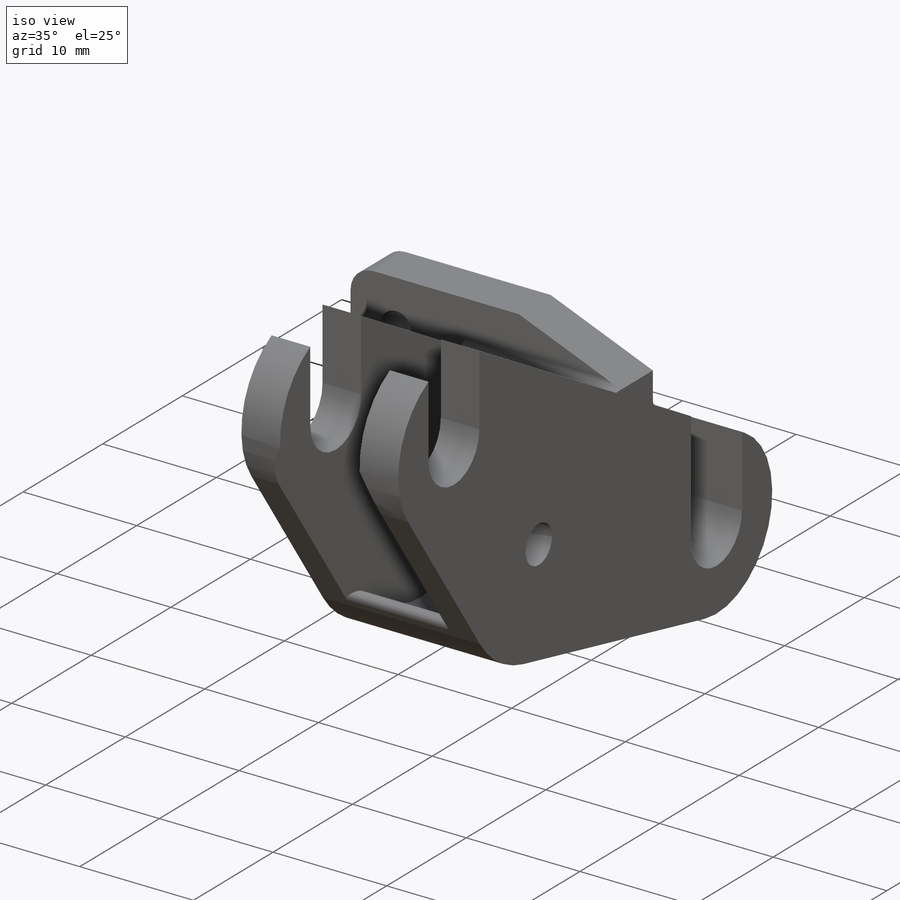
[diagram: iso view]
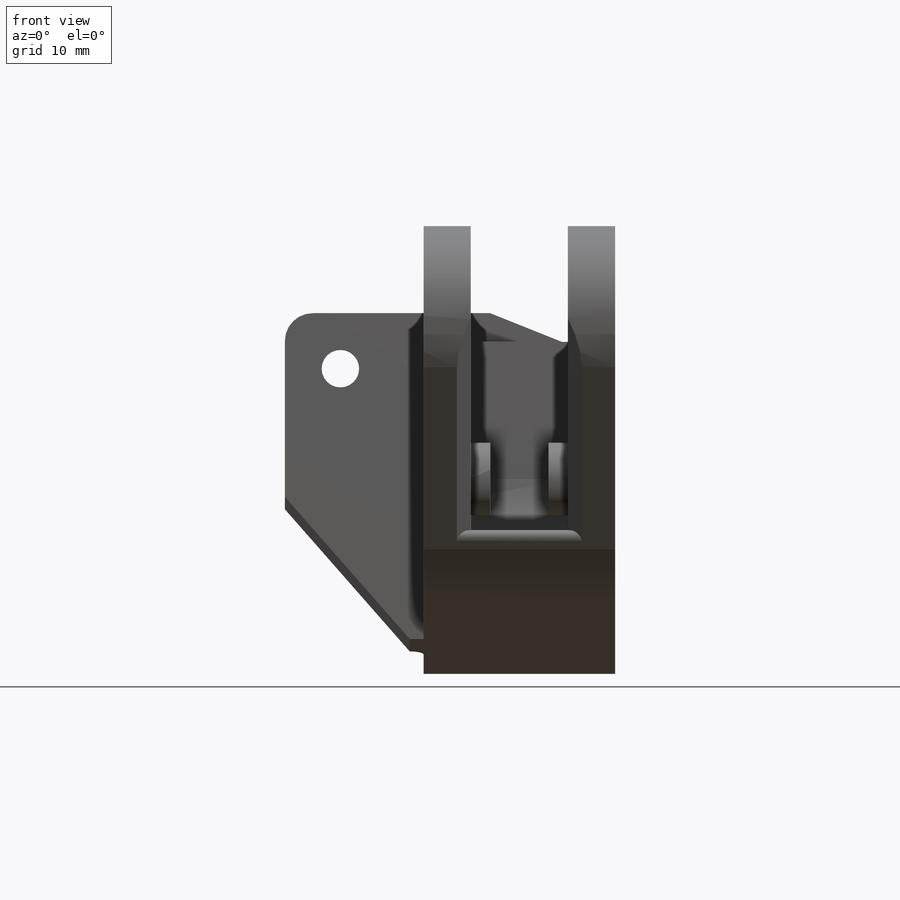
[diagram: front view]
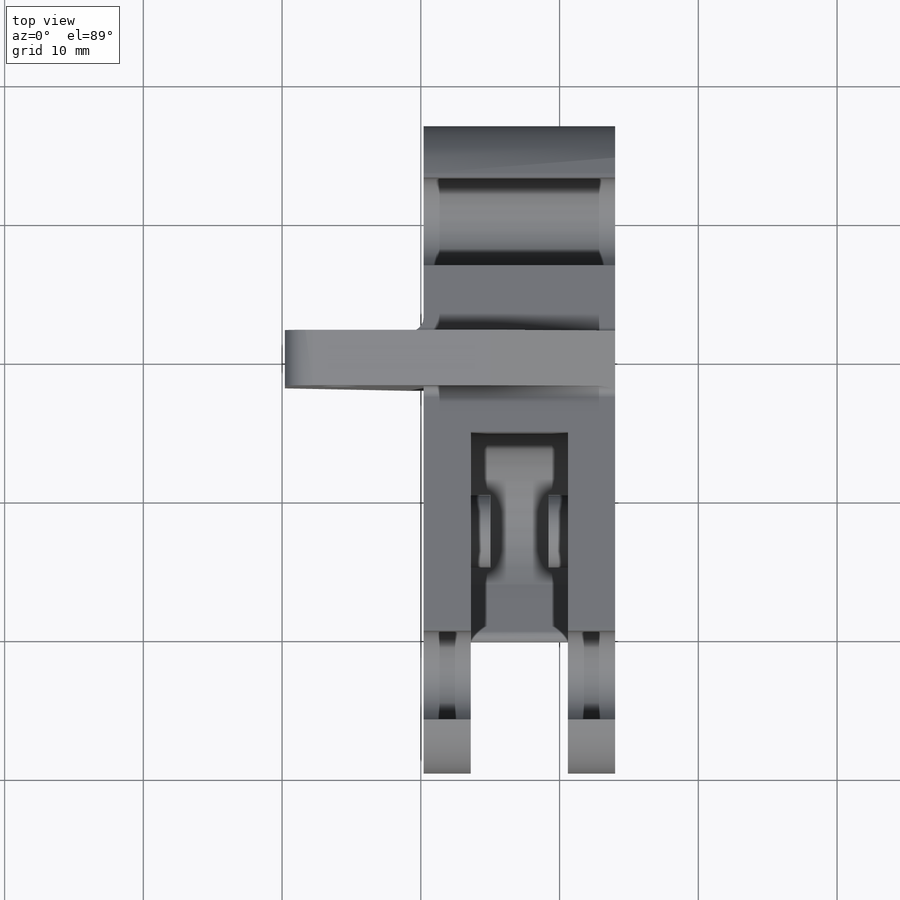
[diagram: top view]
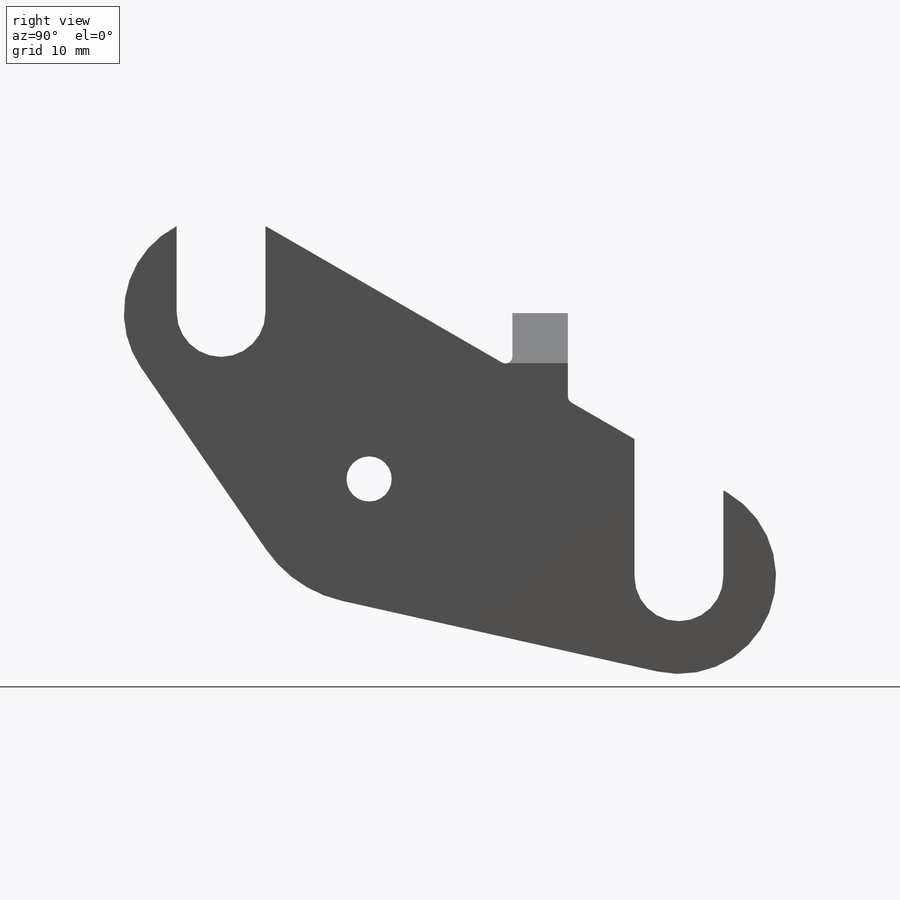
[diagram: right view]
SOLIDWORKS PART (.sldprt)
format: sldprt  version: not decoded by parser v0  size: 297,472 bytes
history: native  units: mm
features: sketch x6, fillet x5, extrude x4, chamfer x3, plane x2, cut_extrude x2, material x1 (+16 scaffold rows collapsed)
feature tree (39):
  scaffold x16  (default folders/planes/origin — collapsed)
  material  "Material <not specified>"
  plane  "Plane4"  Offset=14mm
  plane  "Plane5"  Offset=7.1mm
  sketch  "Sketch1"  dims[c1.D1=3.3mm c1.D2=6.4mm c1.D3=7.0mm c1.D8=9.0mm c1.D4=~38.105118mm c1.D5=~26.869271mm c2.D5=60.0deg c2.D6=10.67mm c2.D7=12.0mm]
  extrude  "Boss-Extrude1"  Depth=13.8mm
  sketch  "Sketch2"  dims[c1.D1=6.4mm c1.D3=6.4mm c2.D1=12.0mm c2.D2=4.0mm c2.D3=19.0mm]
  extrude  "Boss-Extrude2"  Depth=10mm
  sketch  "Sketch3"  dims[D2=2.7mm D1=6.0mm D3=15.0mm]
  cut_extrude  "Cut-Extrude1"  [1 undecoded]
  chamfer  "Chamfer1"  Distance=9mm
  chamfer  "Chamfer2"  Distance=3.6mm
  fillet  "Fillet1"  Radius=2mm
  fillet  "Fillet2"  Radius=0.5mm
  fillet  "Fillet3"  Radius=0.5mm
  fillet  "Fillet4"  Radius=1mm
  sketch  "Sketch4"  dims[c1.D1=14.0mm c1.D2=19.0mm c1.D3=10.0mm c1.D4=~25.148945mm c2.D1=14.0mm c2.D4=2.0mm c3.D1=2.0mm]
  cut_extrude  "Cut-Extrude2"  Depth=3.5mm
  sketch  "Sketch5"  dims[D1=~12.057691mm]
  extrude  "Boss-Extrude3"  Depth=1.4mm
  sketch  "Sketch6"  dims[D1=5.2mm]
  extrude  "Boss-Extrude4"  Depth=1.4mm
  fillet  "Fillet5"  Radius=0.5mm
  chamfer  "Chamfer3"  Distance=1mm Angle=45deg
decode coverage: 19 of 20 modeling features carry decoded parameters
note: ~ marks probable driven/reference dimensions
note: 1 parameter value undecoded
note: suppression state not decoded; provenance and decode notes live in map.json
